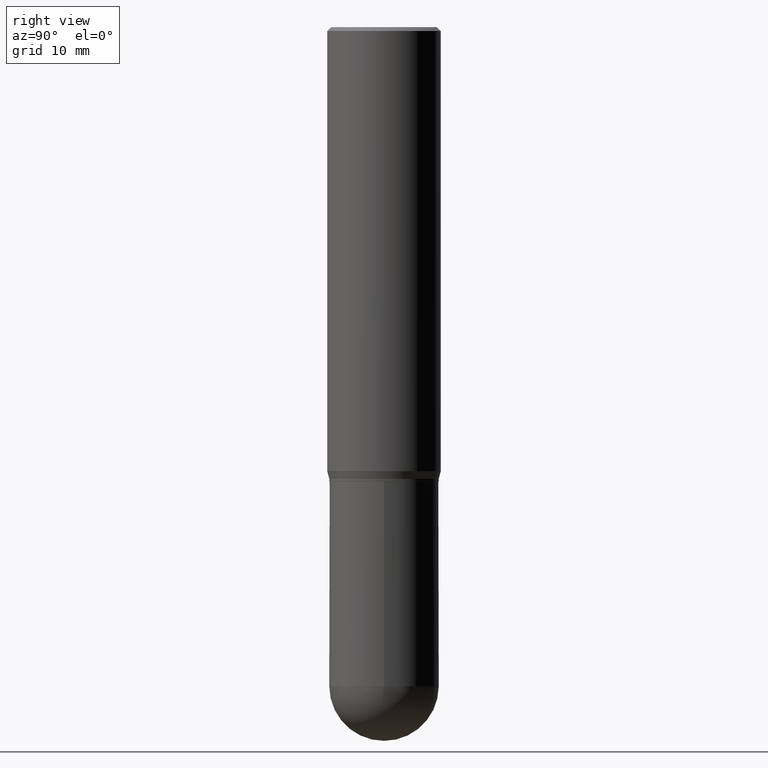
[diagram: clean part render]
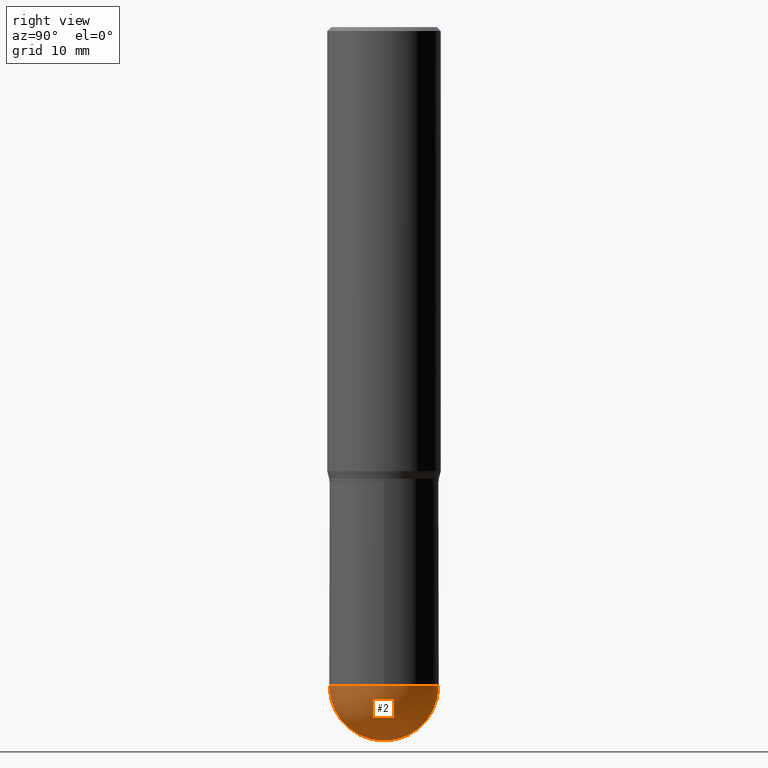
[diagram: same view with one face highlighted and labeled with its STEP entity id]
A machine part, right view. The second image highlights one B-rep face of the part: STEP entity #2.
In plain terms, the highlighted spherical surface has radius 5.3581 mm.
Its self-contained STEP definition (entity closure, byte-faithful):
#1 = VERTEX_POINT ( 'NONE', #20 ) ;
#2 = ADVANCED_FACE ( 'NONE', ( #474 ), #89, .T. ) ;
#17 = AXIS2_PLACEMENT_3D ( 'NONE', #443, #125, #236 ) ;
#20 = CARTESIAN_POINT ( 'NONE',  ( 0.2109500000000000541, -8.960624995040515044E-15, -2.539050000000000473 ) ) ;
#23 = CARTESIAN_POINT ( 'NONE',  ( 1.473055976857980082E-15, 0.2109499999999912001, -2.539050000000000917 ) ) ;
#29 = ORIENTED_EDGE ( 'NONE', *, *, #154, .T. ) ;
#32 = CIRCLE ( 'NONE', #385, 0.2109500000000000541 ) ;
#33 = CIRCLE ( 'NONE', #356, 0.2109500000000001096 ) ;
#34 = DIRECTION ( 'NONE',  ( -1.000000000000000000, 7.105427357601001070E-15, -4.926315508542082329E-29 ) ) ;
#54 = DIRECTION ( 'NONE',  ( 1.000000000000000000, -6.982962677686265133E-15, 0.000000000000000000 ) ) ;
#59 = CARTESIAN_POINT ( 'NONE',  ( 6.209167572344372023E-29, -8.865045693389689499E-15, -2.539050000000000473 ) ) ;
#89 = SPHERICAL_SURFACE ( 'NONE', #17, 0.2109500000000001096 ) ;
#111 = DIRECTION ( 'NONE',  ( -7.105427357601001070E-15, -1.000000000000000000, 0.000000000000000000 ) ) ;
#125 = DIRECTION ( 'NONE',  ( -1.000000000000000000, 6.982962677686265133E-15, -4.883557194083112340E-29 ) ) ;
#131 = DIRECTION ( 'NONE',  ( -2.445468806185136597E-29, 3.491481338843145583E-15, 1.000000000000000000 ) ) ;
#154 = EDGE_CURVE ( 'NONE', #377, #244, #250, .T. ) ;
#205 = CIRCLE ( 'NONE', #268, 0.2109500000000000541 ) ;
#236 = DIRECTION ( 'NONE',  ( 6.982962677686265133E-15, 1.000000000000000000, -2.590043132177541277E-15 ) ) ;
#239 = EDGE_CURVE ( 'NONE', #267, #1, #205, .T. ) ;
#243 = DIRECTION ( 'NONE',  ( -2.445468806185136597E-29, 3.491481338843145583E-15, 1.000000000000000000 ) ) ;
#244 = VERTEX_POINT ( 'NONE', #23 ) ;
#250 = CIRCLE ( 'NONE', #295, 0.2109500000000001096 ) ;
#267 = VERTEX_POINT ( 'NONE', #366 ) ;
#268 = AXIS2_PLACEMENT_3D ( 'NONE', #59, #131, #54 ) ;
#282 = CARTESIAN_POINT ( 'NONE',  ( 6.209167572344372023E-29, -8.865045693389689499E-15, -2.539050000000000473 ) ) ;
#284 = EDGE_LOOP ( 'NONE', ( #457, #29, #389, #455 ) ) ;
#295 = AXIS2_PLACEMENT_3D ( 'NONE', #351, #306, #475 ) ;
#306 = DIRECTION ( 'NONE',  ( 1.000000000000000000, -6.982962677686265922E-15, 4.883557194083112340E-29 ) ) ;
#345 = EDGE_CURVE ( 'NONE', #1, #244, #32, .T. ) ;
#351 = CARTESIAN_POINT ( 'NONE',  ( 6.191127839474132236E-29, -8.890879617617701491E-15, -2.539049999999999585 ) ) ;
#356 = AXIS2_PLACEMENT_3D ( 'NONE', #374, #34, #111 ) ;
#366 = CARTESIAN_POINT ( 'NONE',  ( -1.498889901085869604E-15, -0.2109500000000089637, -2.539049999999999585 ) ) ;
#374 = CARTESIAN_POINT ( 'NONE',  ( 6.191127839474132236E-29, -8.890879617617701491E-15, -2.539049999999999585 ) ) ;
#377 = VERTEX_POINT ( 'NONE', #461 ) ;
#385 = AXIS2_PLACEMENT_3D ( 'NONE', #282, #243, #407 ) ;
#389 = ORIENTED_EDGE ( 'NONE', *, *, #345, .F. ) ;
#407 = DIRECTION ( 'NONE',  ( 1.000000000000000000, -6.982962677686265133E-15, 0.000000000000000000 ) ) ;
#443 = CARTESIAN_POINT ( 'NONE',  ( 6.191127839474132236E-29, -8.890879617617701491E-15, -2.539049999999999585 ) ) ;
#455 = ORIENTED_EDGE ( 'NONE', *, *, #239, .F. ) ;
#457 = ORIENTED_EDGE ( 'NONE', *, *, #472, .F. ) ;
#461 = CARTESIAN_POINT ( 'NONE',  ( 6.716019350574006308E-29, -9.614490643932656644E-15, -2.750000000000000000 ) ) ;
#472 = EDGE_CURVE ( 'NONE', #377, #267, #33, .T. ) ;
#474 = FACE_OUTER_BOUND ( 'NONE', #284, .T. ) ;
#475 = DIRECTION ( 'NONE',  ( 6.982962677686265922E-15, 1.000000000000000000, 0.000000000000000000 ) ) ;